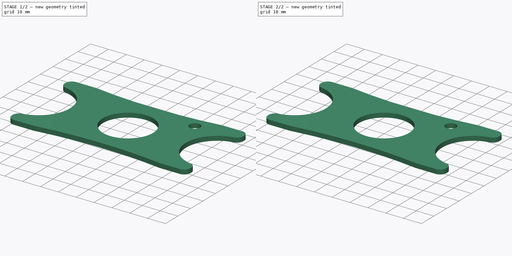
[diagram: build sequence overview — one tinted view per stage of 2, left to right]
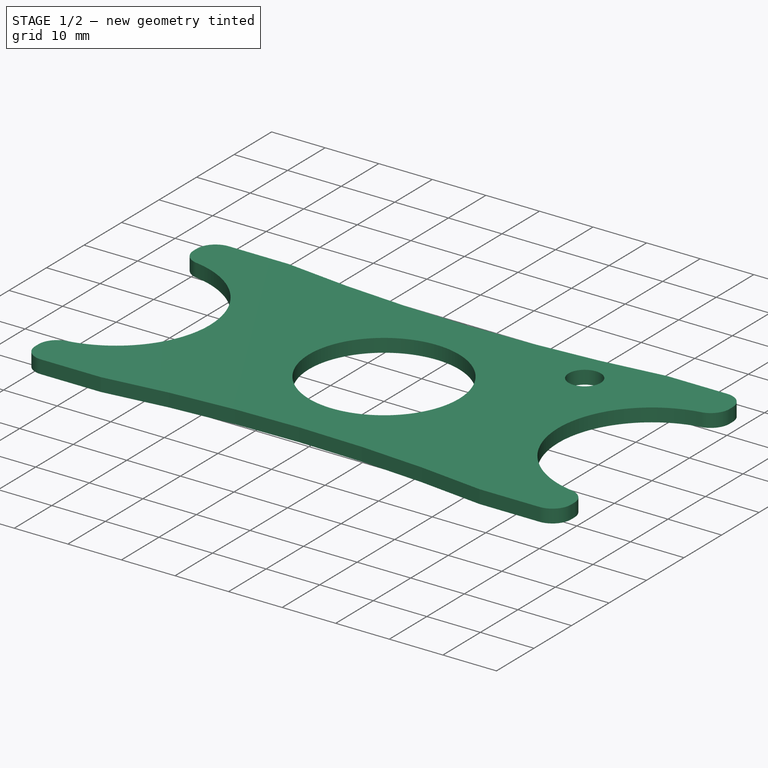
[diagram: stage 1 of 2 — iso view after this stage's code; geometry added in this stage tinted green]
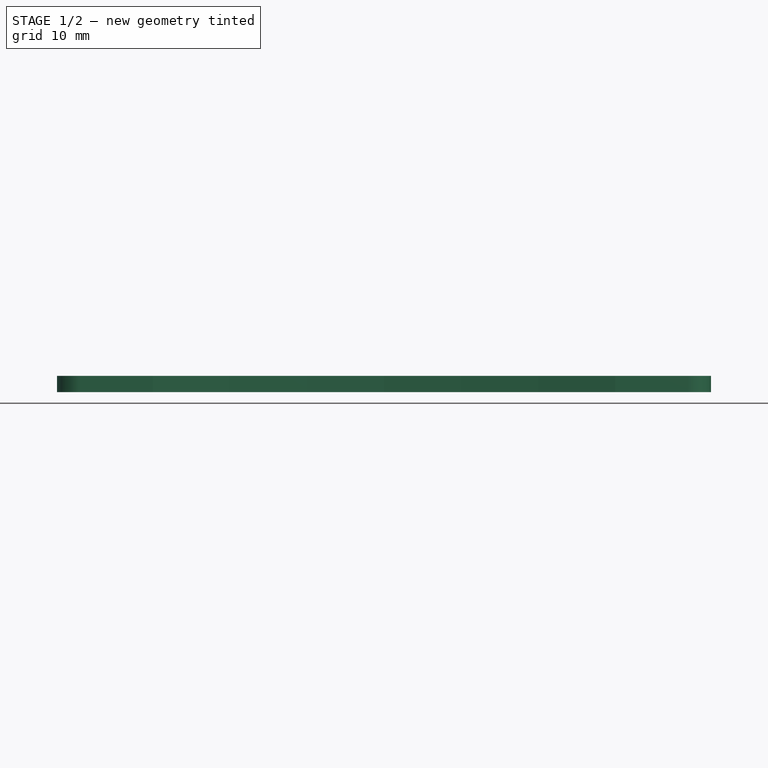
[diagram: stage 1 of 2 — front view after this stage's code; geometry added in this stage tinted green]
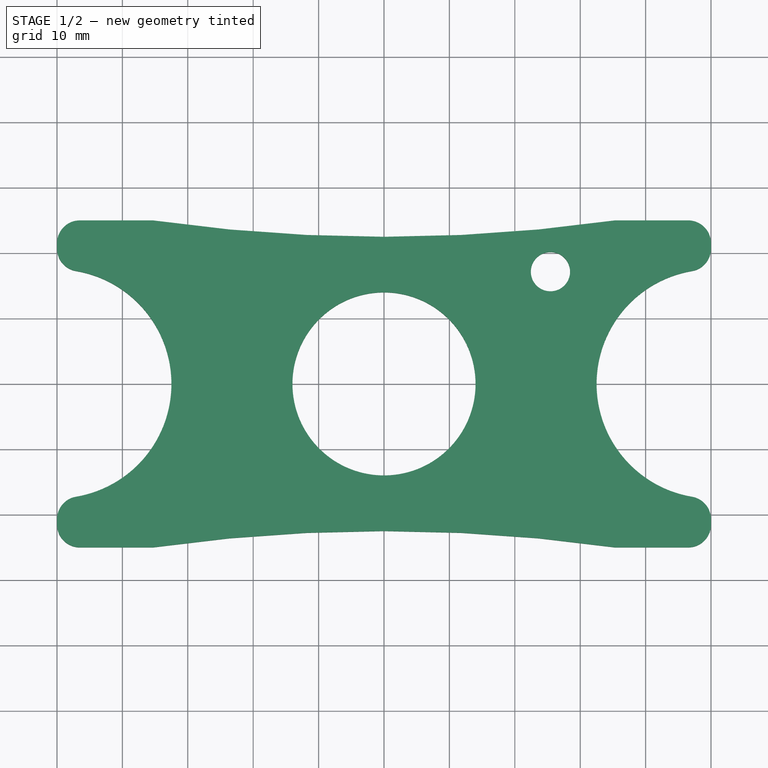
[diagram: stage 1 of 2 — top view after this stage's code; geometry added in this stage tinted green]
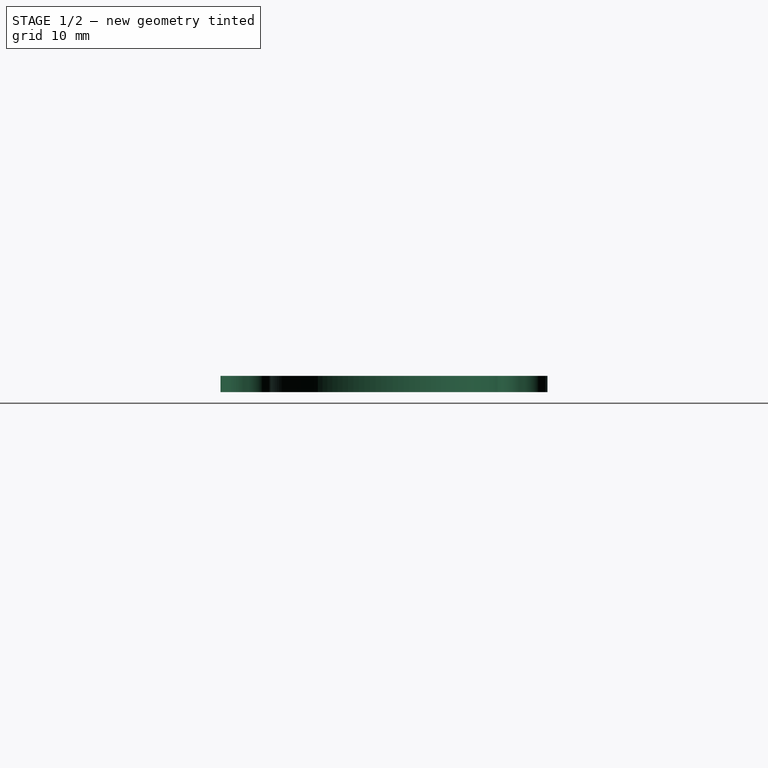
[diagram: stage 1 of 2 — right view after this stage's code; geometry added in this stage tinted green]
FCSTD DOCUMENT  (FreeCAD 1.0R39109 (Git))
Label: WireWinder
License: All rights reserved
LicenseURL: https://en.wikipedia.org/wiki/All_rights_reserved
objects: PartDesign::Fillet×2, Sketcher::SketchObject×1, PartDesign::Pad×1, PartDesign::Body×1, App::Part×1
note: 12 computed .brp shape members not serialized (recipe doc carries the construction recipe); baked Part::Feature solids carry a one-line shape summary decoded from their .brp

FEATURE [Sketcher::SketchObject] Sketch
  ArcFitTolerance = 1e-06
  AttachmentSupport = -> [XY_Plane001]
  FullyConstrained = false
  MakeInternals = false
  MapMode = 5
  sketch-geometry (14):
    g0: LineSegment StartX=-50 StartY=25 StartZ=0 EndX=-50 EndY=17.5 EndZ=0
    g1: LineSegment StartX=-50 StartY=-25 StartZ=0 EndX=-35.3369 EndY=-25 EndZ=0
    g2: LineSegment StartX=50 StartY=-25 StartZ=0 EndX=50 EndY=-17.5 EndZ=0
    g3: LineSegment StartX=50 StartY=25 StartZ=0 EndX=35.3369 EndY=25 EndZ=0
    g4: ArcOfCircle CenterX=-50 CenterY=0 CenterZ=0 NormalX=0 NormalY=0 NormalZ=1 AngleXU=0 Radius=17.5 StartAngle=4.71239 EndAngle=7.85398
    g5: ArcOfCircle CenterX=50 CenterY=0 CenterZ=0 NormalX=0 NormalY=0 NormalZ=1 AngleXU=0 Radius=17.5 StartAngle=1.5708 EndAngle=4.71239
    g6: Circle CenterX=0 CenterY=0 CenterZ=0 NormalX=0 NormalY=0 NormalZ=1 AngleXU=0 Radius=14
    g7: ArcOfCircle CenterX=0 CenterY=-272.49 CenterZ=0 NormalX=0 NormalY=0 NormalZ=1 AngleXU=0 Radius=250 StartAngle=1.42897 EndAngle=1.71262
    g8: ArcOfCircle CenterX=0 CenterY=272.49 CenterZ=0 NormalX=0 NormalY=0 NormalZ=1 AngleXU=0 Radius=250 StartAngle=4.57057 EndAngle=4.85421
    g9: LineSegment StartX=-35.3369 StartY=25 StartZ=0 EndX=-50 EndY=25 EndZ=0
    g10: LineSegment StartX=35.3369 StartY=-25 StartZ=0 EndX=50 EndY=-25 EndZ=0
    g11: LineSegment StartX=50 StartY=17.5 StartZ=0 EndX=50 EndY=25 EndZ=0
    g12: LineSegment StartX=-50 StartY=-17.5 StartZ=0 EndX=-50 EndY=-25 EndZ=0
    g13: Circle CenterX=25.4479 CenterY=17.157 CenterZ=0 NormalX=0 NormalY=0 NormalZ=1 AngleXU=0 Radius=3
  constraints (36):
    c: Coincident(g12,g1)
    c: Coincident(g10,g2)
    c: Coincident(g11,g3)
    c: Coincident(g9,g0)
    c: Vertical(g0)
    c: Vertical(g2)
    c: Horizontal(g1)
    c: Horizontal(g3)
    c: Distance(g0,g11) = 100
    c: Distance(g1,g9) = 50
    c: Symmetric(g0,g10,g-1)
    c: Diameter(g4) = 35
    c: Symmetric(g0,g12,g4)
    c: Diameter(g5) = 35
    c: Symmetric(g2,g11,g5)
    c: Diameter(g6) = 28
    c: Coincident(g6,g-1)
    c: Diameter(g7) = 500
    c: PointOnObject(g7,g-2)
    c: DistanceY(g7,g6) = 272.49
    c: Diameter(g8) = 500
    c: PointOnObject(g8,g-2)
    c: DistanceY(g6,g8) = 272.49
    c: PointOnObject(g8,g9)
    c: Coincident(g3,g8)
    c: PointOnObject(g9,g8)
    c: PointOnObject(g7,g10)
    c: Coincident(g1,g7)
    c: PointOnObject(g10,g7)
    c: PointOnObject(g5,g11)
    c: Coincident(g2,g5)
    c: PointOnObject(g11,g5)
    c: PointOnObject(g4,g12)
    c: Coincident(g0,g4)
    c: PointOnObject(g12,g4)
    c: Diameter(g13) = 6
FEATURE [PartDesign::Pad] Pad
  Direction = (0,0,1)
  Length = 2.5
  Length2 = 10
  Profile = -> Sketch
  ReferenceAxis = -> Sketch [N_Axis]
  Refine = true
  Suppressed = false
  Type = 0
FEATURE [PartDesign::Fillet] Fillet
  Base = -> Pad [Edge11,Edge20,Edge23,Edge29,Edge26,Edge5,Edge2,Edge8]
  BaseFeature = -> Pad
  Radius = 3.5
  Refine = true
  SupportTransform = false
  Suppressed = false
  UseAllEdges = false
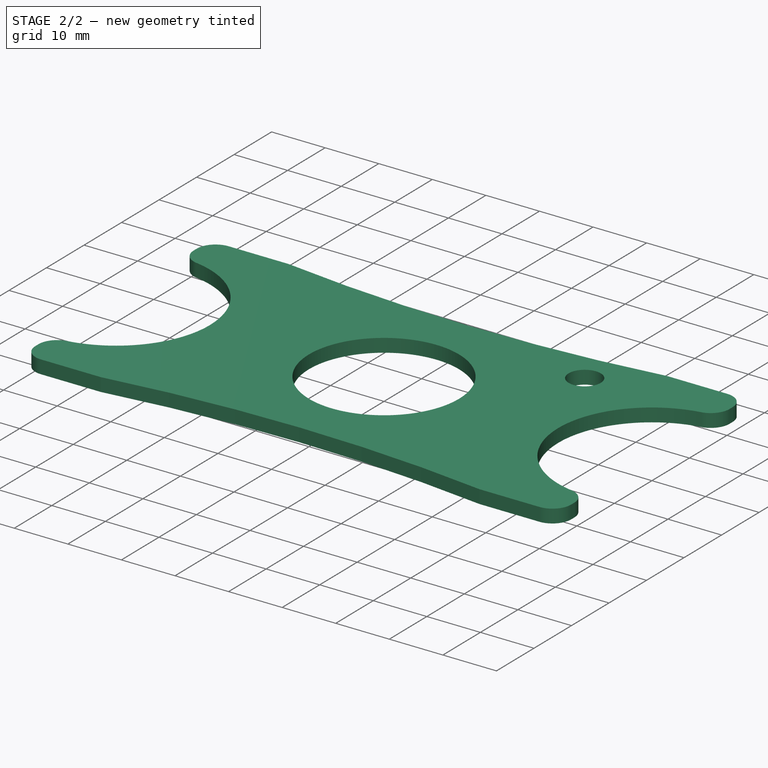
[diagram: stage 2 of 2 — iso view after this stage's code; geometry added in this stage tinted green]
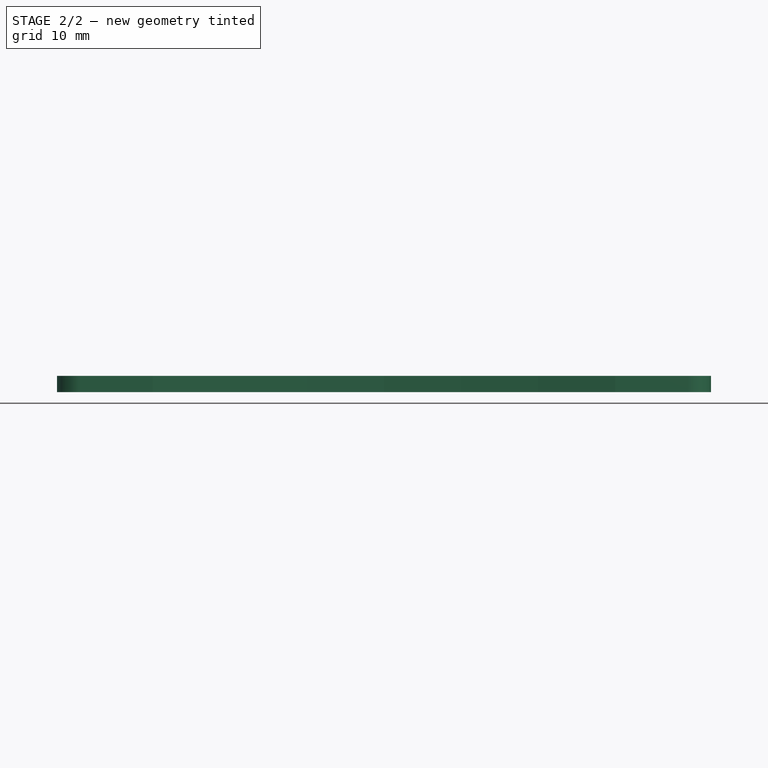
[diagram: stage 2 of 2 — front view after this stage's code; geometry added in this stage tinted green]
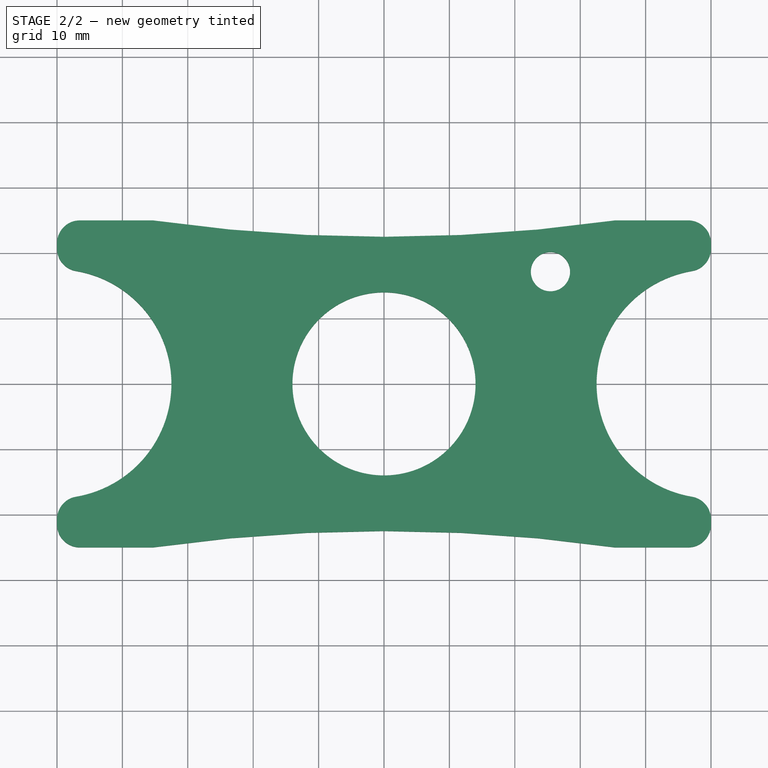
[diagram: stage 2 of 2 — top view after this stage's code; geometry added in this stage tinted green]
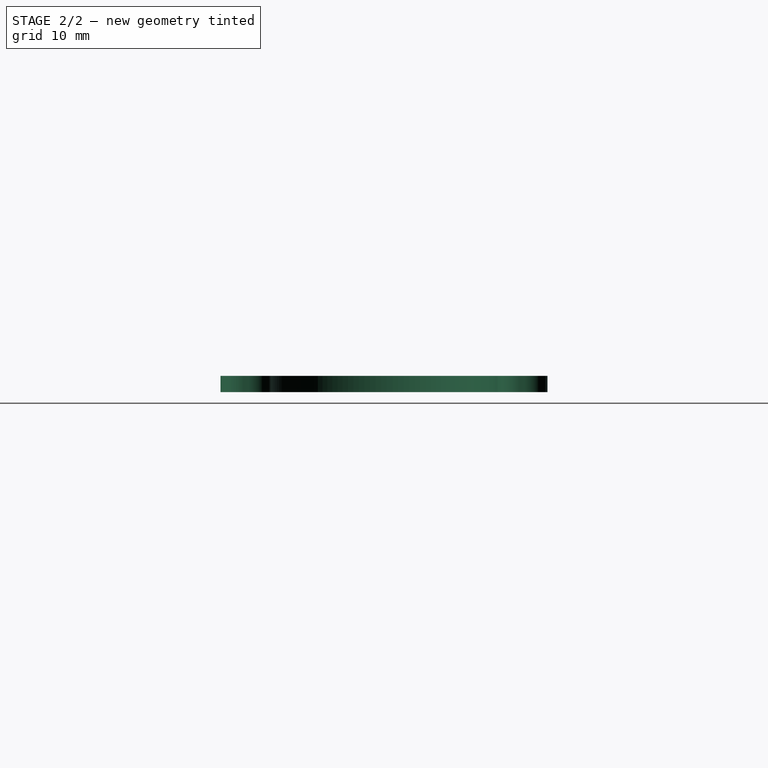
[diagram: stage 2 of 2 — right view after this stage's code; geometry added in this stage tinted green]
FEATURE [PartDesign::Fillet] Fillet001
  Base = -> Fillet [Edge28,Edge3,Edge61,Edge63]
  BaseFeature = -> Fillet
  Radius = 1
  Refine = true
  SupportTransform = false
  Suppressed = false
  UseAllEdges = false
FEATURE [PartDesign::Body] Body
  AllowCompound = false
  Group = -> [Sketch,Pad,Fillet,Fillet001]
  Origin = -> Origin001
  Tip = -> Fillet001
FEATURE [App::Part] Part  label="WireWinder"
  Group = -> [Body]
  Origin = -> Origin
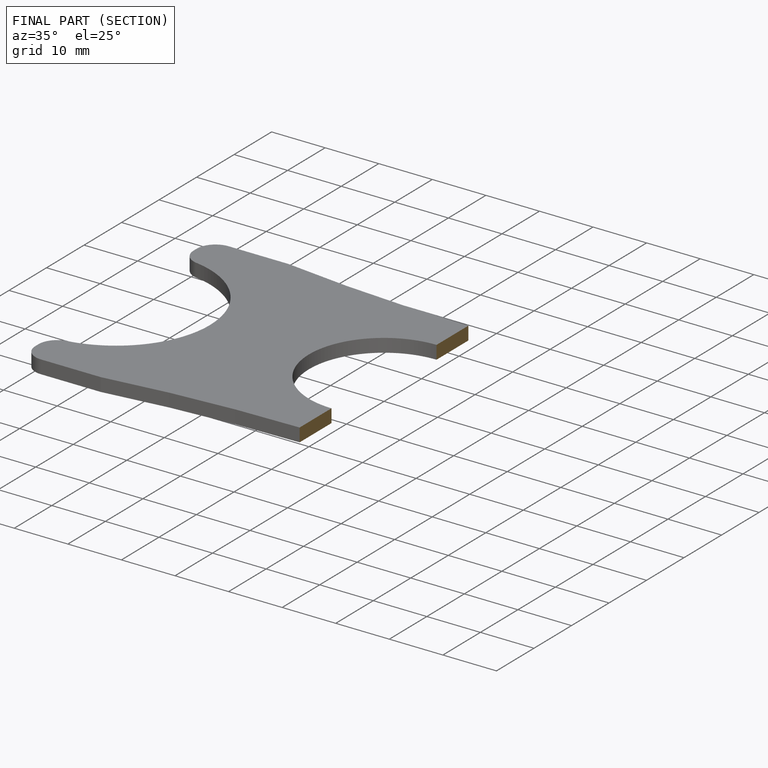
[diagram: finished part — half-section view (interior)]
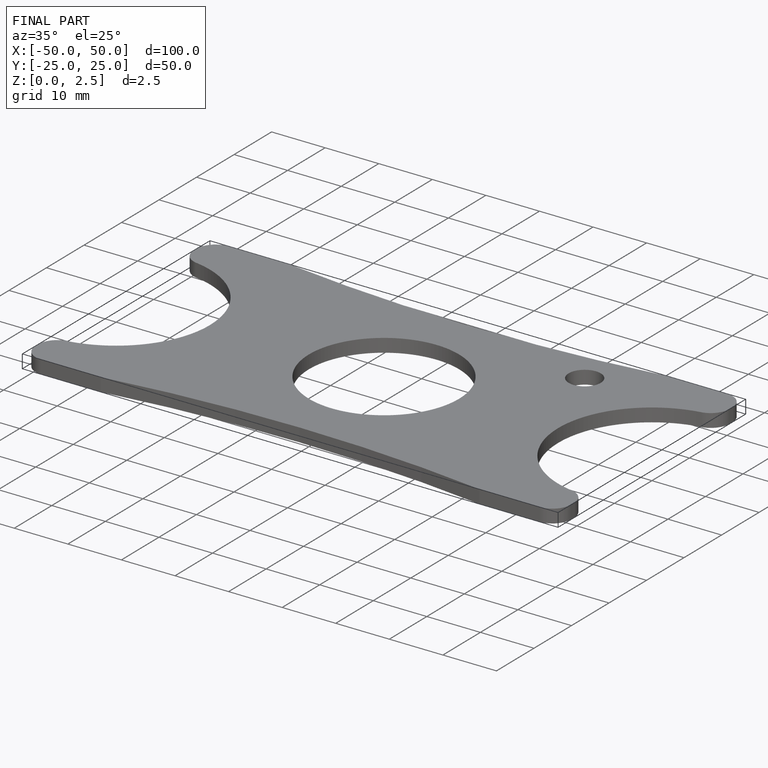
[diagram: finished part — iso view with bounding-box wireframe]
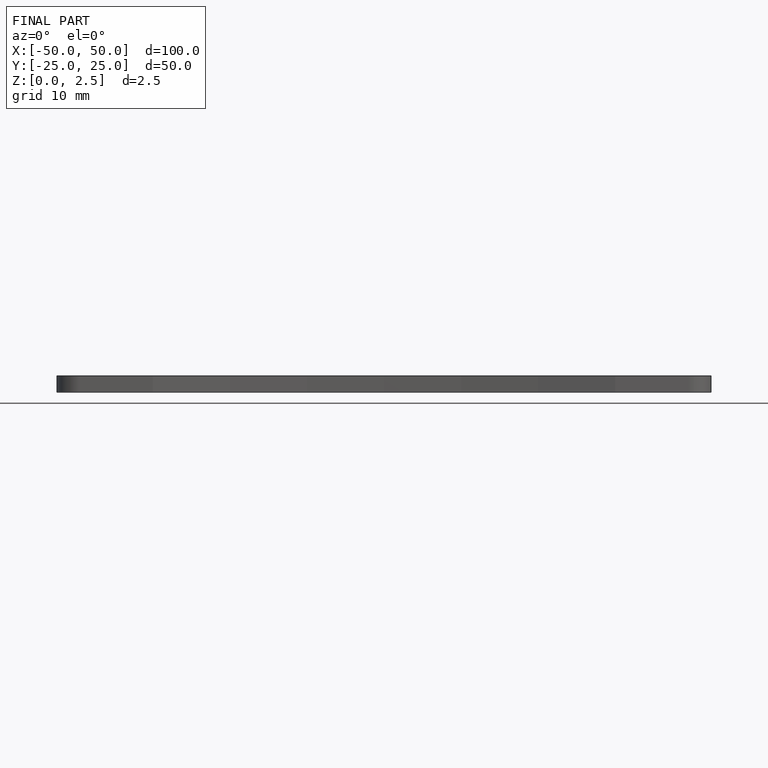
[diagram: finished part — front view with bounding-box wireframe]
